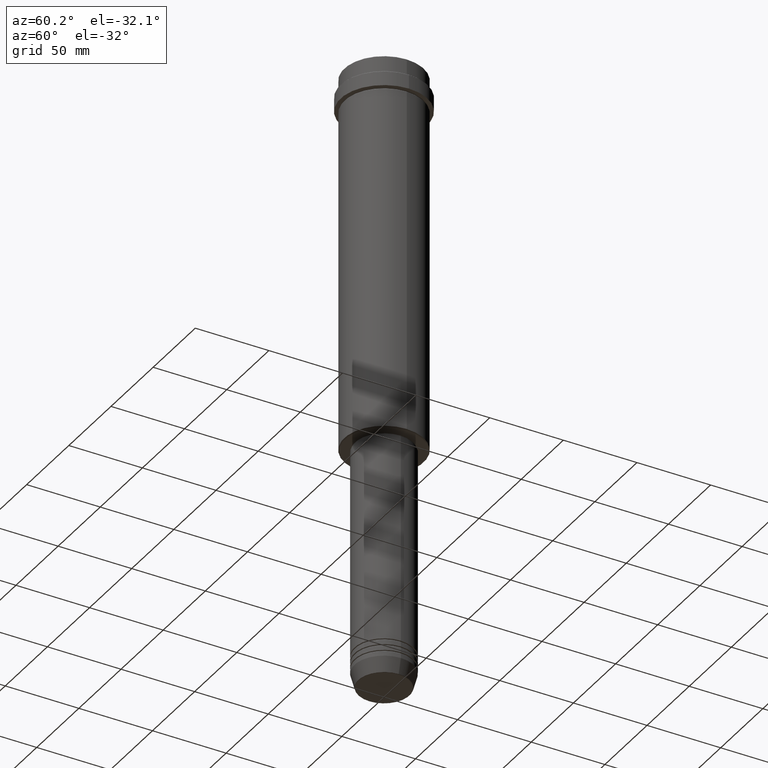
[diagram: clean part render]
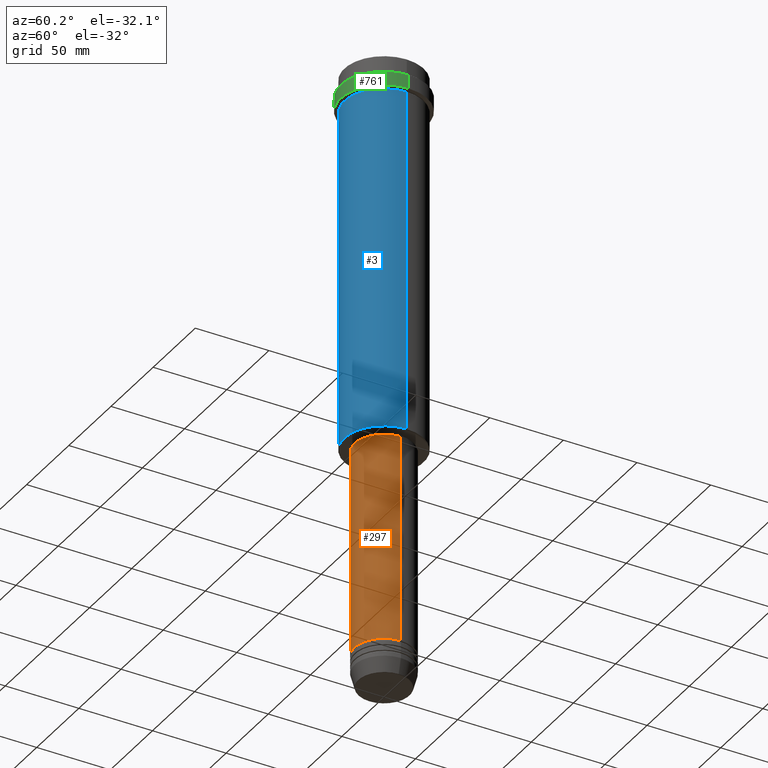
[diagram: same view with three faces highlighted in distinct colors, each labeled with its STEP entity id]
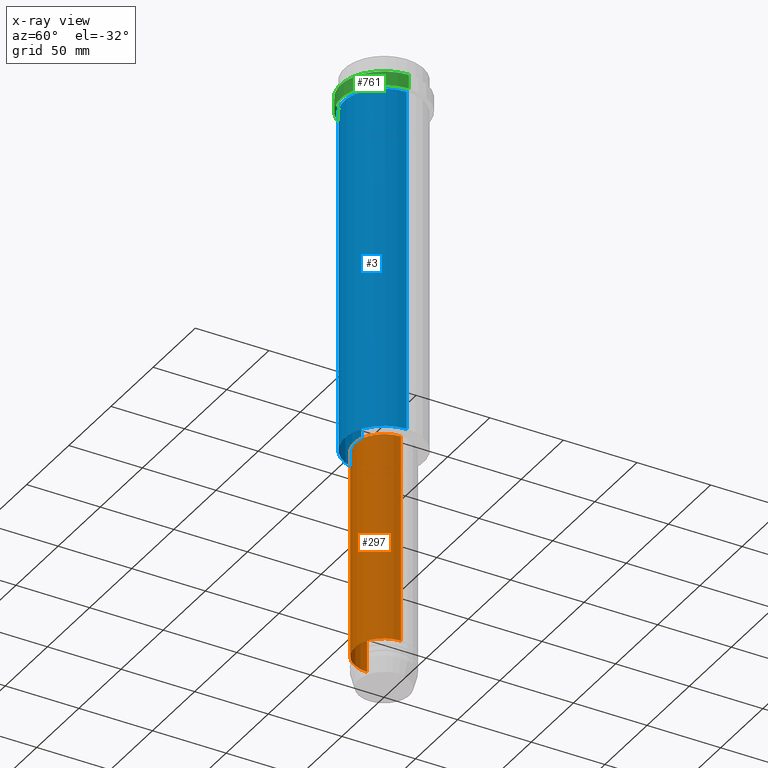
[diagram: x-ray of the same camera — body ghosted, the three highlighted faces saturated]
A machine part, auxiliary view with three faces highlighted in distinct colors.
The next image is the same camera in x-ray (body ghosted, the three faces saturated) — at least one of them is partly hidden behind the body in this view.
Their STEP definitions:

[orange] entity #297 — the highlighted cylindrical surface (edge-blend (fillet) strip) has radius 20 mm, axis along (-0, -0, 1).
#46 = CYLINDRICAL_SURFACE ( 'NONE', #538, 20.00000000000000000 ) ;
#57 = CARTESIAN_POINT ( 'NONE',  ( 20.00000000000000000, 0.000000000000000000, -259.0000000000000000 ) ) ;
#73 = AXIS2_PLACEMENT_3D ( 'NONE', #493, #186, #1253 ) ;
#180 = DIRECTION ( 'NONE',  ( -0.000000000000000000, -0.000000000000000000, 1.000000000000000000 ) ) ;
#186 = DIRECTION ( 'NONE',  ( -0.000000000000000000, -0.000000000000000000, 1.000000000000000000 ) ) ;
#206 = DIRECTION ( 'NONE',  ( -0.000000000000000000, -0.000000000000000000, 1.000000000000000000 ) ) ;
#230 = EDGE_CURVE ( 'NONE', #1053, #1236, #878, .T. ) ;
#294 = VERTEX_POINT ( 'NONE', #804 ) ;
#297 = ADVANCED_FACE ( 'NONE', ( #1381 ), #46, .T. ) ;
#385 = CARTESIAN_POINT ( 'NONE',  ( 0.000000000000000000, 0.000000000000000000, 0.000000000000000000 ) ) ;
#396 = DIRECTION ( 'NONE',  ( -0.000000000000000000, -0.000000000000000000, 1.000000000000000000 ) ) ;
#407 = EDGE_LOOP ( 'NONE', ( #1287, #1044, #1188, #1301 ) ) ;
#418 = EDGE_CURVE ( 'NONE', #972, #1236, #435, .T. ) ;
#435 = LINE ( 'NONE', #631, #1247 ) ;
#493 = CARTESIAN_POINT ( 'NONE',  ( 0.000000000000000000, 0.000000000000000000, -259.0000000000000000 ) ) ;
#517 = AXIS2_PLACEMENT_3D ( 'NONE', #712, #180, #1043 ) ;
#538 = AXIS2_PLACEMENT_3D ( 'NONE', #385, #396, #705 ) ;
#555 = CARTESIAN_POINT ( 'NONE',  ( 20.00000000000000000, 0.000000000000000000, -400.9999999999998295 ) ) ;
#631 = CARTESIAN_POINT ( 'NONE',  ( 20.00000000000000000, 0.000000000000000000, 0.000000000000000000 ) ) ;
#635 = CARTESIAN_POINT ( 'NONE',  ( -20.00000000000000000, 2.449293598294706513E-15, 0.000000000000000000 ) ) ;
#705 = DIRECTION ( 'NONE',  ( 1.000000000000000000, 0.000000000000000000, 0.000000000000000000 ) ) ;
#712 = CARTESIAN_POINT ( 'NONE',  ( 0.000000000000000000, 0.000000000000000000, -400.9999999999998295 ) ) ;
#765 = CIRCLE ( 'NONE', #517, 20.00000000000000000 ) ;
#798 = EDGE_CURVE ( 'NONE', #294, #972, #765, .T. ) ;
#804 = CARTESIAN_POINT ( 'NONE',  ( -20.00000000000000000, 2.449293598294706513E-15, -400.9999999999998295 ) ) ;
#832 = LINE ( 'NONE', #635, #1155 ) ;
#878 = CIRCLE ( 'NONE', #73, 20.00000000000000000 ) ;
#884 = CARTESIAN_POINT ( 'NONE',  ( -20.00000000000000000, 2.449293598294706513E-15, -259.0000000000000000 ) ) ;
#886 = EDGE_CURVE ( 'NONE', #294, #1053, #832, .T. ) ;
#972 = VERTEX_POINT ( 'NONE', #555 ) ;
#1043 = DIRECTION ( 'NONE',  ( 1.000000000000000000, 0.000000000000000000, 0.000000000000000000 ) ) ;
#1044 = ORIENTED_EDGE ( 'NONE', *, *, #798, .T. ) ;
#1053 = VERTEX_POINT ( 'NONE', #884 ) ;
#1155 = VECTOR ( 'NONE', #1396, 1000.000000000000000 ) ;
#1188 = ORIENTED_EDGE ( 'NONE', *, *, #418, .T. ) ;
#1236 = VERTEX_POINT ( 'NONE', #57 ) ;
#1247 = VECTOR ( 'NONE', #206, 1000.000000000000000 ) ;
#1253 = DIRECTION ( 'NONE',  ( 1.000000000000000000, 0.000000000000000000, 0.000000000000000000 ) ) ;
#1287 = ORIENTED_EDGE ( 'NONE', *, *, #886, .F. ) ;
#1301 = ORIENTED_EDGE ( 'NONE', *, *, #230, .F. ) ;
#1381 = FACE_OUTER_BOUND ( 'NONE', #407, .T. ) ;
#1396 = DIRECTION ( 'NONE',  ( -0.000000000000000000, -0.000000000000000000, 1.000000000000000000 ) ) ;

[blue] entity #3 — the highlighted cylindrical surface (partial cylindrical patch) has radius 27 mm, axis along (-0, -0, 1).
#3 = ADVANCED_FACE ( 'NONE', ( #1096 ), #93, .T. ) ;
#55 = CIRCLE ( 'NONE', #1035, 27.00000000000000355 ) ;
#93 = CYLINDRICAL_SURFACE ( 'NONE', #101, 27.00000000000000355 ) ;
#101 = AXIS2_PLACEMENT_3D ( 'NONE', #192, #763, #406 ) ;
#112 = ORIENTED_EDGE ( 'NONE', *, *, #727, .F. ) ;
#149 = VECTOR ( 'NONE', #922, 1000.000000000000000 ) ;
#173 = AXIS2_PLACEMENT_3D ( 'NONE', #799, #352, #551 ) ;
#190 = CARTESIAN_POINT ( 'NONE',  ( 27.00000000000000355, 0.000000000000000000, -23.00000000000001421 ) ) ;
#192 = CARTESIAN_POINT ( 'NONE',  ( 0.000000000000000000, 0.000000000000000000, 0.000000000000000000 ) ) ;
#196 = CARTESIAN_POINT ( 'NONE',  ( 27.00000000000000355, 0.000000000000000000, 0.000000000000000000 ) ) ;
#352 = DIRECTION ( 'NONE',  ( -0.000000000000000000, -0.000000000000000000, 1.000000000000000000 ) ) ;
#381 = VECTOR ( 'NONE', #1181, 1000.000000000000000 ) ;
#390 = ORIENTED_EDGE ( 'NONE', *, *, #710, .T. ) ;
#406 = DIRECTION ( 'NONE',  ( 1.000000000000000000, 0.000000000000000000, 0.000000000000000000 ) ) ;
#490 = CARTESIAN_POINT ( 'NONE',  ( -27.00000000000000355, 3.306546357697854128E-15, 0.000000000000000000 ) ) ;
#494 = CIRCLE ( 'NONE', #173, 27.00000000000000355 ) ;
#551 = DIRECTION ( 'NONE',  ( 1.000000000000000000, 0.000000000000000000, 0.000000000000000000 ) ) ;
#618 = EDGE_CURVE ( 'NONE', #917, #873, #494, .T. ) ;
#700 = ORIENTED_EDGE ( 'NONE', *, *, #618, .F. ) ;
#704 = CARTESIAN_POINT ( 'NONE',  ( 0.000000000000000000, 0.000000000000000000, -257.5000000000000568 ) ) ;
#710 = EDGE_CURVE ( 'NONE', #724, #791, #55, .T. ) ;
#724 = VERTEX_POINT ( 'NONE', #1264 ) ;
#727 = EDGE_CURVE ( 'NONE', #724, #917, #811, .T. ) ;
#763 = DIRECTION ( 'NONE',  ( -0.000000000000000000, -0.000000000000000000, 1.000000000000000000 ) ) ;
#791 = VERTEX_POINT ( 'NONE', #1373 ) ;
#799 = CARTESIAN_POINT ( 'NONE',  ( 0.000000000000000000, 0.000000000000000000, -23.00000000000001421 ) ) ;
#811 = LINE ( 'NONE', #490, #149 ) ;
#873 = VERTEX_POINT ( 'NONE', #190 ) ;
#917 = VERTEX_POINT ( 'NONE', #1069 ) ;
#922 = DIRECTION ( 'NONE',  ( -0.000000000000000000, -0.000000000000000000, 1.000000000000000000 ) ) ;
#947 = EDGE_LOOP ( 'NONE', ( #112, #390, #1067, #700 ) ) ;
#1035 = AXIS2_PLACEMENT_3D ( 'NONE', #704, #1356, #1036 ) ;
#1036 = DIRECTION ( 'NONE',  ( -1.000000000000000000, 0.000000000000000000, 0.000000000000000000 ) ) ;
#1067 = ORIENTED_EDGE ( 'NONE', *, *, #1369, .T. ) ;
#1069 = CARTESIAN_POINT ( 'NONE',  ( -27.00000000000000355, 3.306546357697854128E-15, -23.00000000000001421 ) ) ;
#1096 = FACE_OUTER_BOUND ( 'NONE', #947, .T. ) ;
#1173 = LINE ( 'NONE', #196, #381 ) ;
#1181 = DIRECTION ( 'NONE',  ( -0.000000000000000000, -0.000000000000000000, 1.000000000000000000 ) ) ;
#1264 = CARTESIAN_POINT ( 'NONE',  ( -27.00000000000000355, 3.306546357697854128E-15, -257.5000000000000568 ) ) ;
#1356 = DIRECTION ( 'NONE',  ( -0.000000000000000000, -0.000000000000000000, 1.000000000000000000 ) ) ;
#1369 = EDGE_CURVE ( 'NONE', #791, #873, #1173, .T. ) ;
#1373 = CARTESIAN_POINT ( 'NONE',  ( 27.00000000000000355, 0.000000000000000000, -257.5000000000000568 ) ) ;

[green] entity #761 — the highlighted cylindrical surface (partial cylindrical patch) has radius 29.5 mm, axis along (-0, -0, 1).
#5 = EDGE_CURVE ( 'NONE', #426, #951, #524, .T. ) ;
#50 = DIRECTION ( 'NONE',  ( 1.000000000000000000, 0.000000000000000000, 0.000000000000000000 ) ) ;
#63 = CARTESIAN_POINT ( 'NONE',  ( 0.000000000000000000, 0.000000000000000000, -12.50000000000000355 ) ) ;
#83 = ORIENTED_EDGE ( 'NONE', *, *, #1389, .T. ) ;
#147 = CYLINDRICAL_SURFACE ( 'NONE', #1200, 29.50000000000000000 ) ;
#194 = VERTEX_POINT ( 'NONE', #1118 ) ;
#264 = DIRECTION ( 'NONE',  ( -0.000000000000000000, -0.000000000000000000, 1.000000000000000000 ) ) ;
#291 = CIRCLE ( 'NONE', #1386, 29.49999999999999645 ) ;
#351 = ORIENTED_EDGE ( 'NONE', *, *, #703, .T. ) ;
#426 = VERTEX_POINT ( 'NONE', #1176 ) ;
#477 = DIRECTION ( 'NONE',  ( 1.000000000000000000, 0.000000000000000000, 0.000000000000000000 ) ) ;
#482 = CARTESIAN_POINT ( 'NONE',  ( 0.000000000000000000, 0.000000000000000000, -22.00000000000000711 ) ) ;
#511 = EDGE_CURVE ( 'NONE', #194, #776, #771, .T. ) ;
#524 = LINE ( 'NONE', #531, #1106 ) ;
#531 = CARTESIAN_POINT ( 'NONE',  ( -29.50000000000000000, 3.612708057484691604E-15, 0.000000000000000000 ) ) ;
#565 = CARTESIAN_POINT ( 'NONE',  ( -29.50000000000000000, 3.612708057484691604E-15, -12.50000000000000355 ) ) ;
#585 = CARTESIAN_POINT ( 'NONE',  ( 0.000000000000000000, 0.000000000000000000, 0.000000000000000000 ) ) ;
#612 = FACE_OUTER_BOUND ( 'NONE', #1338, .T. ) ;
#692 = AXIS2_PLACEMENT_3D ( 'NONE', #63, #1285, #828 ) ;
#703 = EDGE_CURVE ( 'NONE', #426, #194, #291, .T. ) ;
#761 = ADVANCED_FACE ( 'NONE', ( #612 ), #147, .T. ) ;
#771 = LINE ( 'NONE', #1339, #880 ) ;
#776 = VERTEX_POINT ( 'NONE', #929 ) ;
#828 = DIRECTION ( 'NONE',  ( 1.000000000000000000, 0.000000000000000000, 0.000000000000000000 ) ) ;
#880 = VECTOR ( 'NONE', #1005, 1000.000000000000000 ) ;
#929 = CARTESIAN_POINT ( 'NONE',  ( 29.50000000000000000, 0.000000000000000000, -12.50000000000000355 ) ) ;
#951 = VERTEX_POINT ( 'NONE', #565 ) ;
#957 = ORIENTED_EDGE ( 'NONE', *, *, #511, .T. ) ;
#974 = DIRECTION ( 'NONE',  ( -0.000000000000000000, -0.000000000000000000, 1.000000000000000000 ) ) ;
#1005 = DIRECTION ( 'NONE',  ( -0.000000000000000000, -0.000000000000000000, 1.000000000000000000 ) ) ;
#1085 = ORIENTED_EDGE ( 'NONE', *, *, #5, .F. ) ;
#1106 = VECTOR ( 'NONE', #974, 1000.000000000000000 ) ;
#1118 = CARTESIAN_POINT ( 'NONE',  ( 29.49999999999999645, 0.000000000000000000, -22.00000000000000711 ) ) ;
#1176 = CARTESIAN_POINT ( 'NONE',  ( -29.49999999999999645, 3.612708057484690815E-15, -22.00000000000000711 ) ) ;
#1200 = AXIS2_PLACEMENT_3D ( 'NONE', #585, #264, #50 ) ;
#1238 = DIRECTION ( 'NONE',  ( -0.000000000000000000, -0.000000000000000000, 1.000000000000000000 ) ) ;
#1285 = DIRECTION ( 'NONE',  ( 0.000000000000000000, 0.000000000000000000, -1.000000000000000000 ) ) ;
#1325 = CIRCLE ( 'NONE', #692, 29.50000000000000000 ) ;
#1338 = EDGE_LOOP ( 'NONE', ( #1085, #351, #957, #83 ) ) ;
#1339 = CARTESIAN_POINT ( 'NONE',  ( 29.50000000000000000, 0.000000000000000000, 0.000000000000000000 ) ) ;
#1386 = AXIS2_PLACEMENT_3D ( 'NONE', #482, #1238, #477 ) ;
#1389 = EDGE_CURVE ( 'NONE', #776, #951, #1325, .T. ) ;